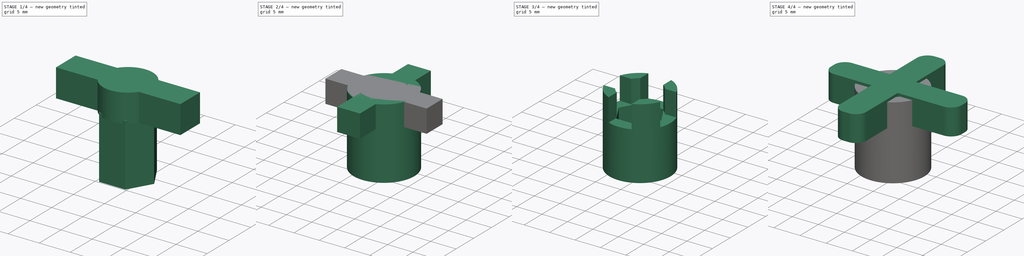
[diagram: build sequence overview — one tinted view per stage of 4, left to right]
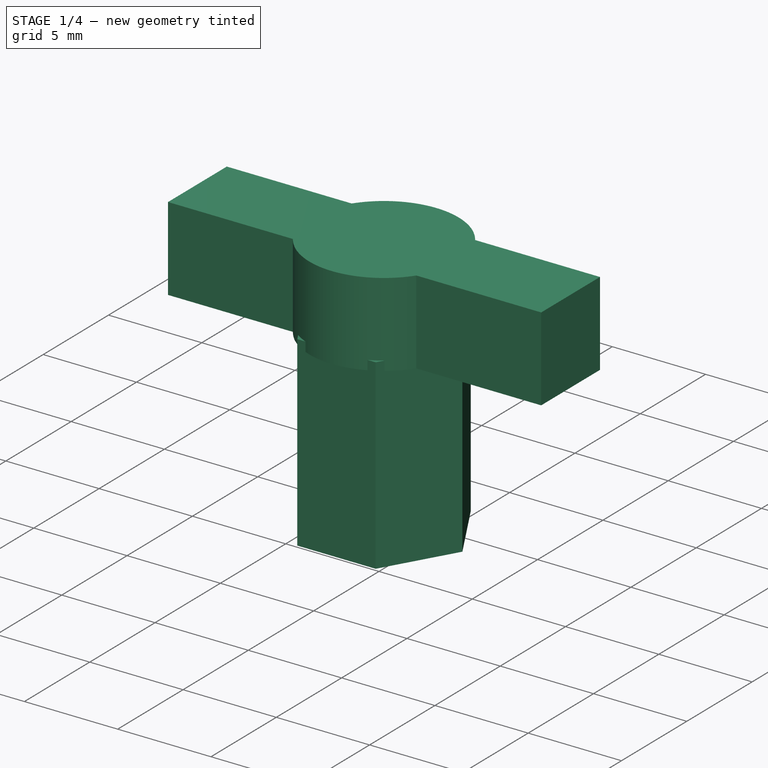
[diagram: stage 1 of 4 — iso view after this stage's code; geometry added in this stage tinted green]
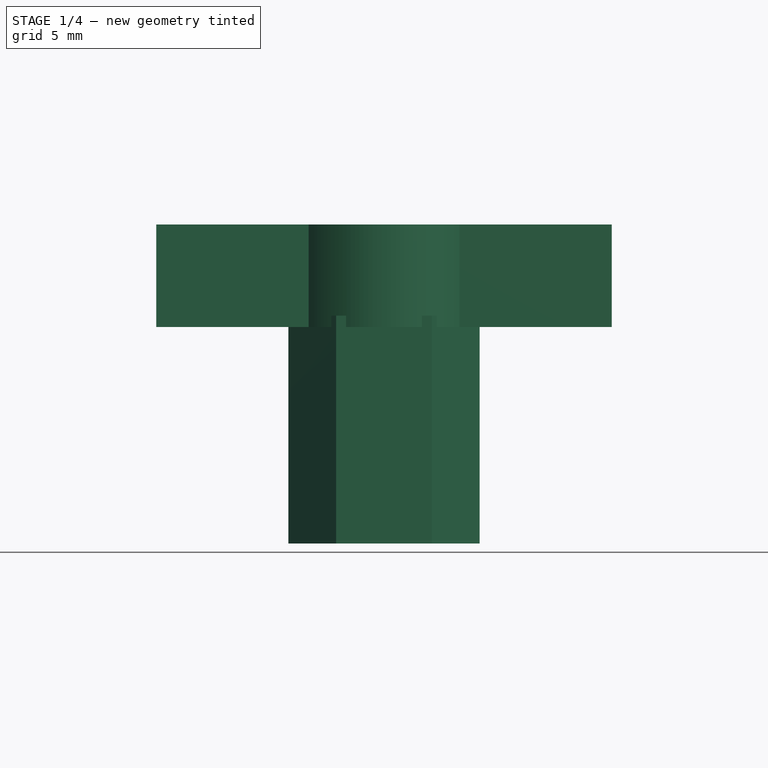
[diagram: stage 1 of 4 — front view after this stage's code; geometry added in this stage tinted green]
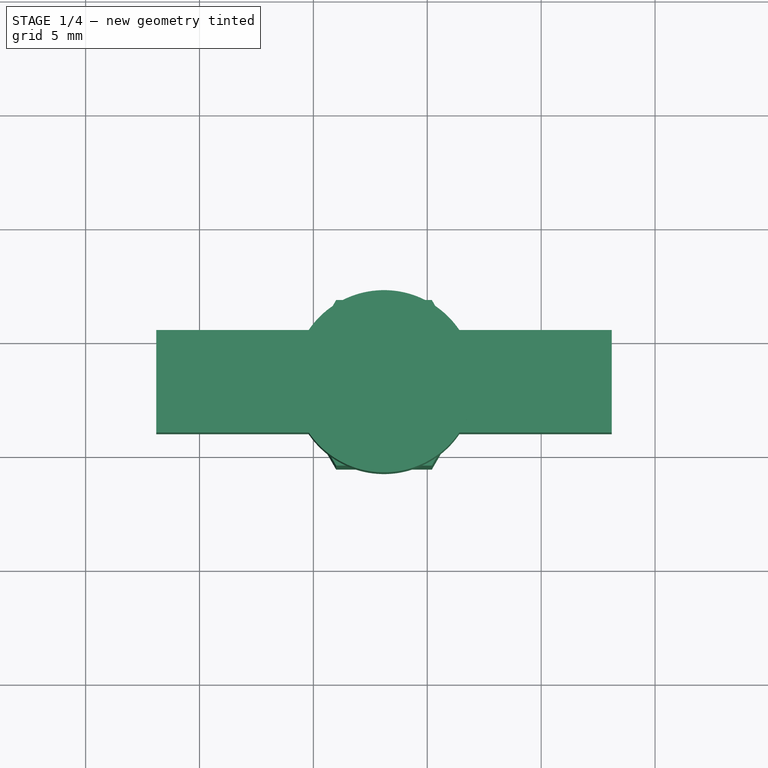
[diagram: stage 1 of 4 — top view after this stage's code; geometry added in this stage tinted green]
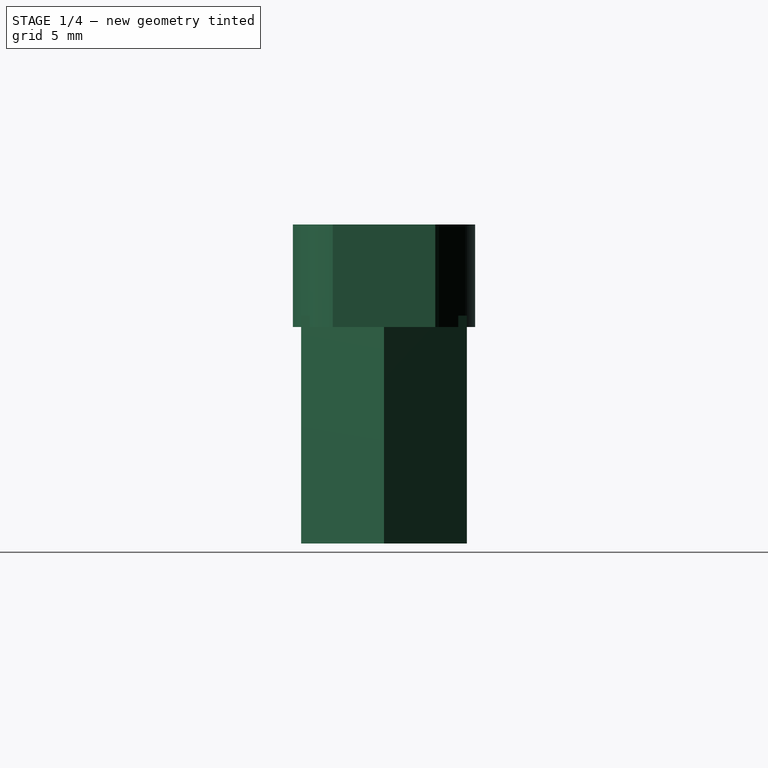
[diagram: stage 1 of 4 — right view after this stage's code; geometry added in this stage tinted green]
FCSTD DOCUMENT  (FreeCAD 0.19R23634 (Git))
Label: Stage-Nut_Cross
License: All rights reserved
LicenseURL: http://en.wikipedia.org/wiki/All_rights_reserved
objects: Part::Box×2, Part::Cylinder×2, PartDesign::Fillet×2, Part::Prism×1, Part::MultiFuse×1, Part::Cut×1, PartDesign::FeatureBase×1, PartDesign::CoordinateSystem×1, Sketcher::SketchObject×1, PartDesign::Pad×1, PartDesign::Body×1, App::Part×1
note: 17 computed .brp shape members not serialized (recipe doc carries the construction recipe); baked Part::Feature solids carry a one-line shape summary decoded from their .brp

FEATURE [Part::Cylinder] cylinder019
  Angle = 360
  AttacherType = Attacher::AttachEngine3D
  Height = 4.5
  Placement = pos=(-66.9,-66.9,-7) rot=(0,0,1;0rad)
  Radius = 4
FEATURE [Part::Prism] prism022
  AttacherType = Attacher::AttachEngine3D
  Circumradius = 4.2
  FirstAngle = 0
  Height = 10
  Placement = pos=(-66.9,-66.9,-16.5) rot=(0,0,1;0rad)
  Polygon = 6
  SecondAngle = 0
FEATURE [Part::Box] cube028
  AttacherType = Attacher::AttachEngine3D
  Height = 4.5
  Length = 20
  Placement = pos=(-76.9,-69.15,-7) rot=(0,0,1;0rad)
  Width = 4.5
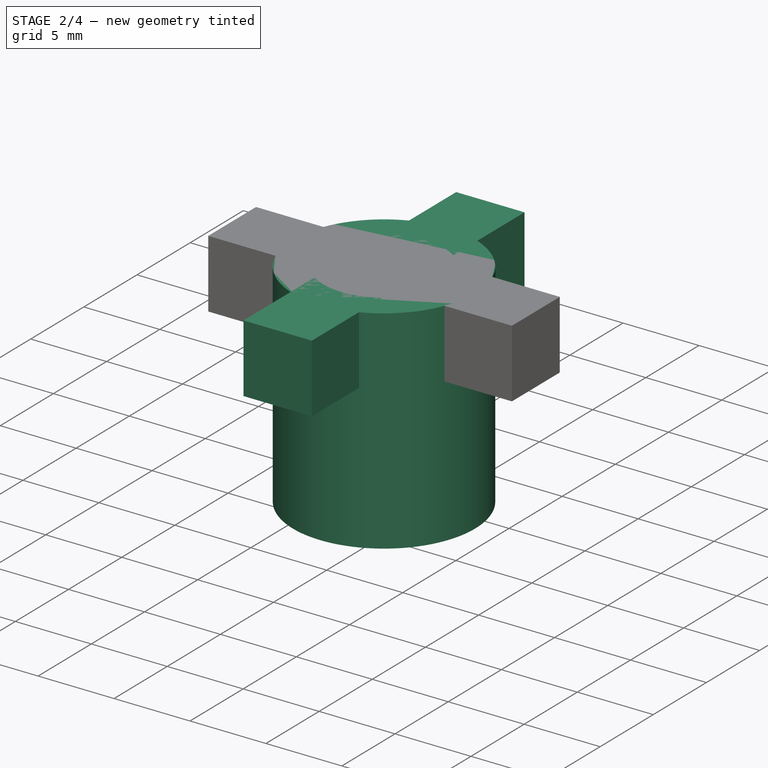
[diagram: stage 2 of 4 — iso view after this stage's code; geometry added in this stage tinted green]
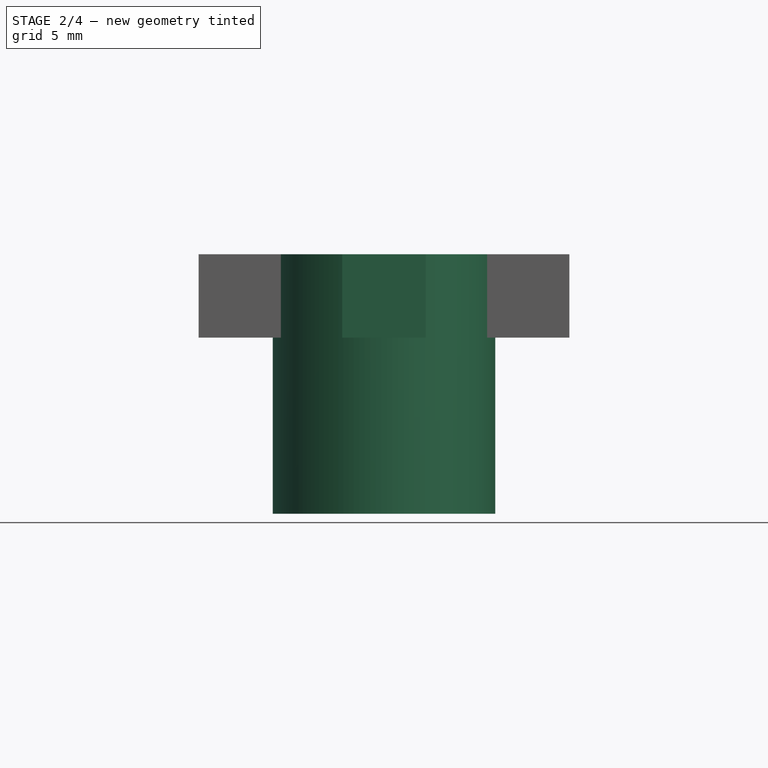
[diagram: stage 2 of 4 — front view after this stage's code; geometry added in this stage tinted green]
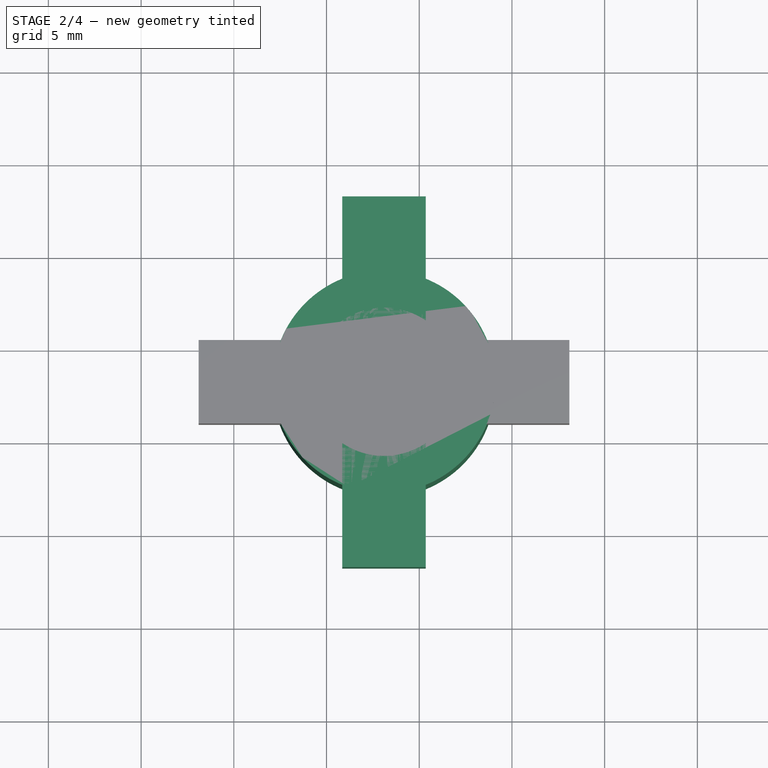
[diagram: stage 2 of 4 — top view after this stage's code; geometry added in this stage tinted green]
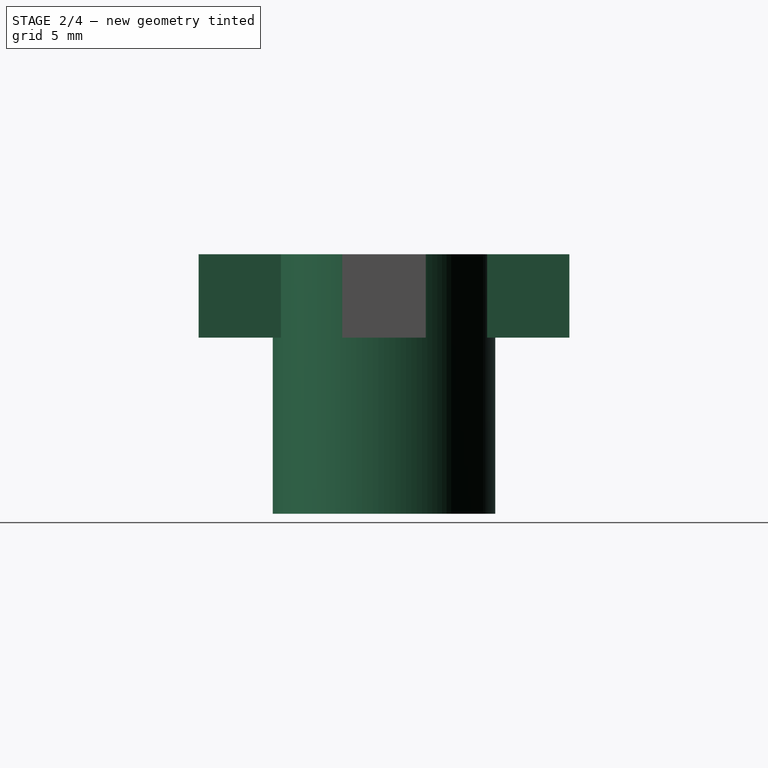
[diagram: stage 2 of 4 — right view after this stage's code; geometry added in this stage tinted green]
FEATURE [Part::Box] cube029
  AttacherType = Attacher::AttachEngine3D
  Height = 4.5
  Length = 4.5
  Placement = pos=(-69.15,-76.9,-7) rot=(0,0,1;0rad)
  Width = 20
FEATURE [Part::Cylinder] cylinder018
  Angle = 360
  AttacherType = Attacher::AttachEngine3D
  Height = 14
  Placement = pos=(-66.9,-66.9,-16.5) rot=(0,0,1;0rad)
  Radius = 6
FEATURE [Part::MultiFuse] Group012
  Shapes = -> [prism022,cylinder019,cube028,cube029]
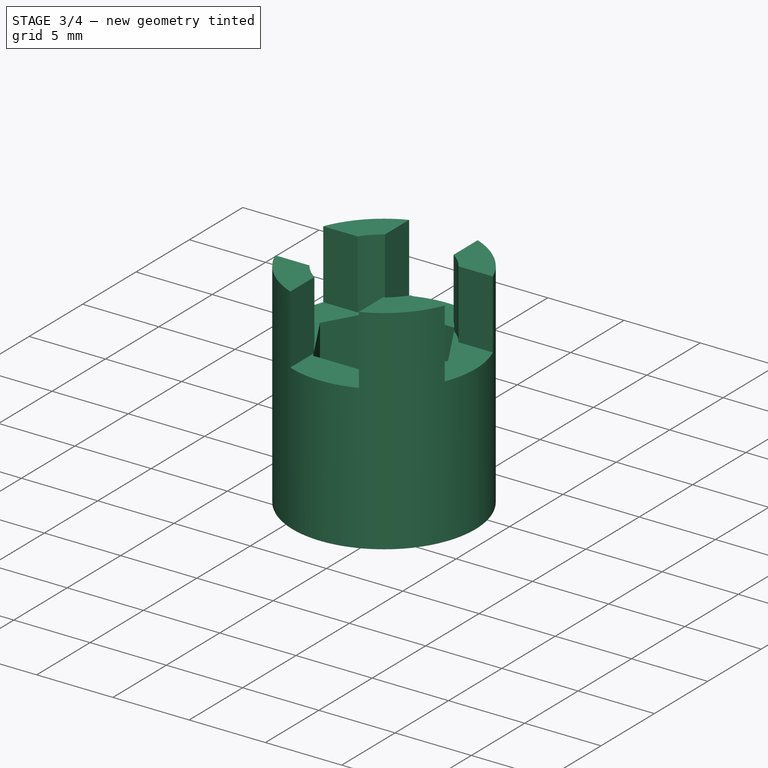
[diagram: stage 3 of 4 — iso view after this stage's code; geometry added in this stage tinted green]
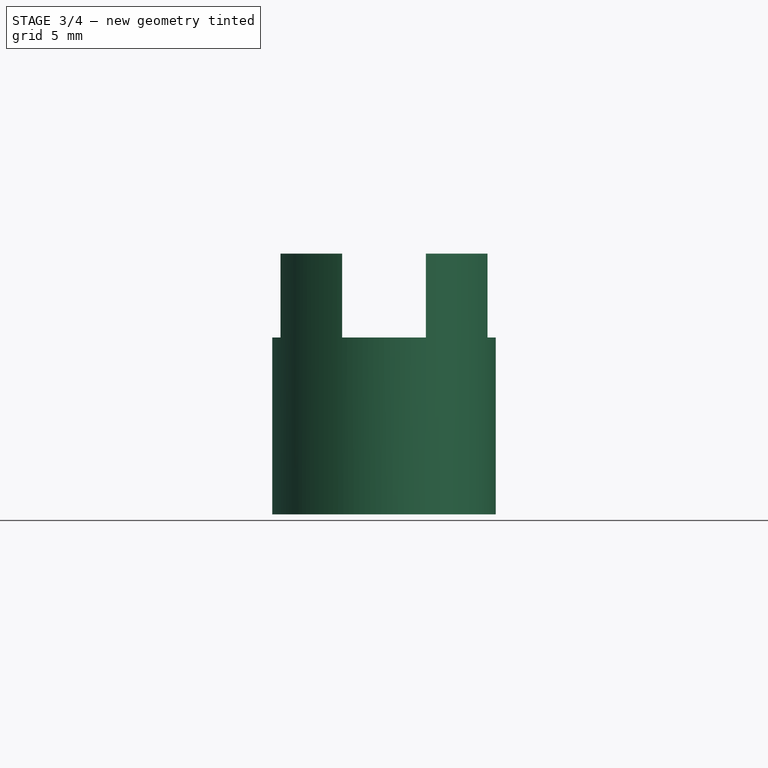
[diagram: stage 3 of 4 — front view after this stage's code; geometry added in this stage tinted green]
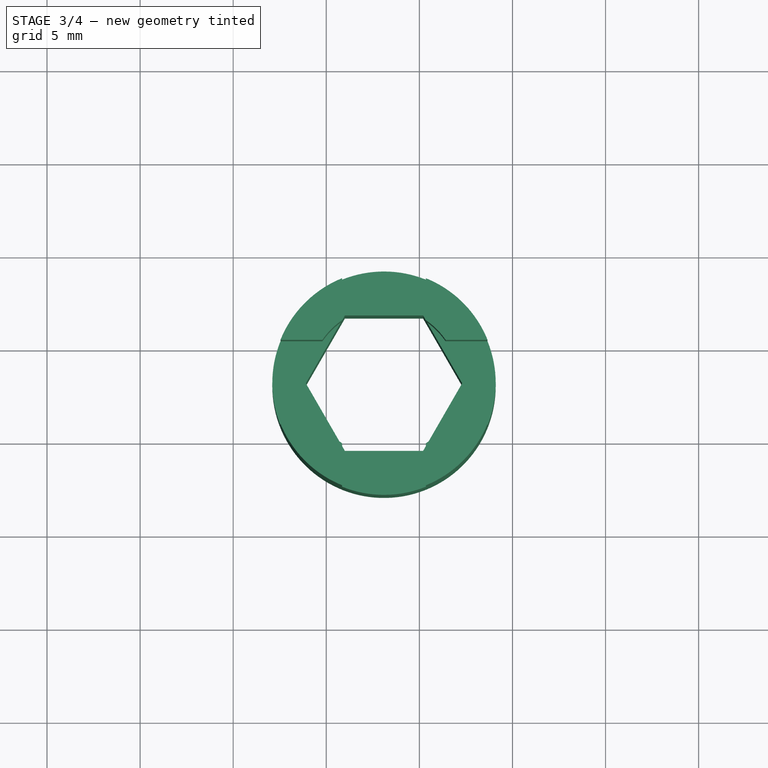
[diagram: stage 3 of 4 — top view after this stage's code; geometry added in this stage tinted green]
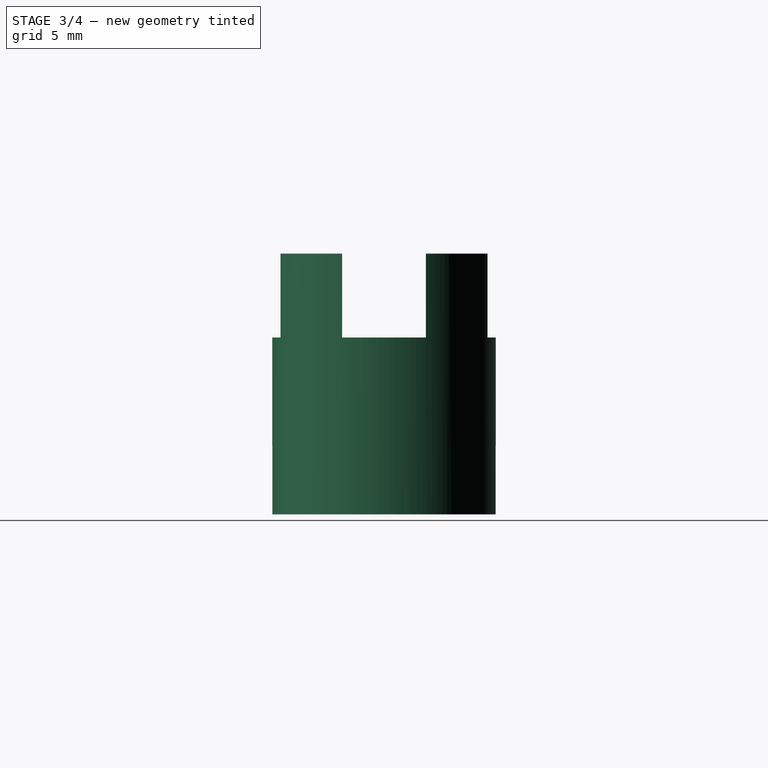
[diagram: stage 3 of 4 — right view after this stage's code; geometry added in this stage tinted green]
FEATURE [Part::Cut] difference007
  Base = -> cylinder018
  Tool = -> Group012
FEATURE [PartDesign::FeatureBase] BaseFeature007
  BaseFeature = -> difference007
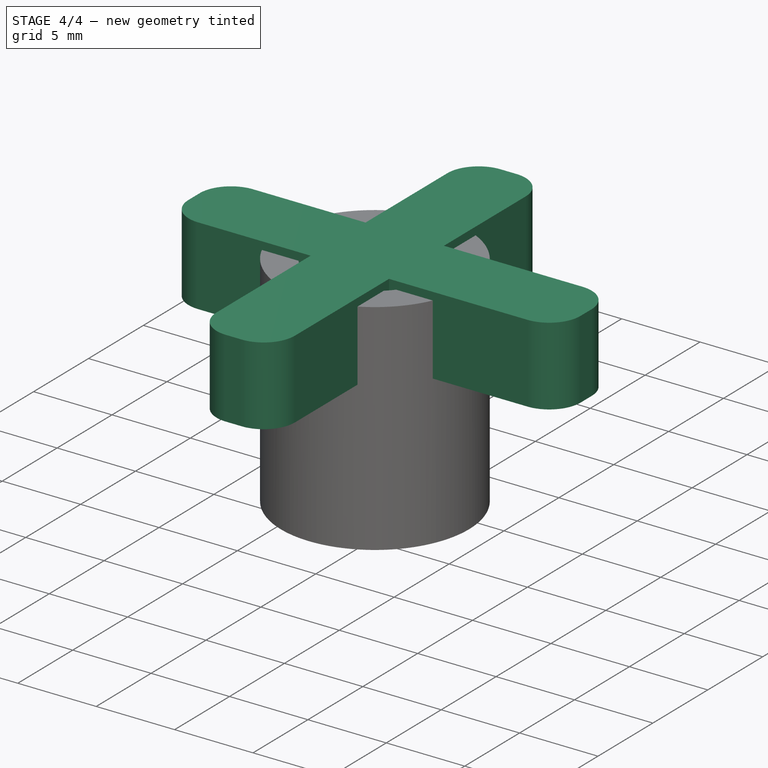
[diagram: stage 4 of 4 — iso view after this stage's code; geometry added in this stage tinted green]
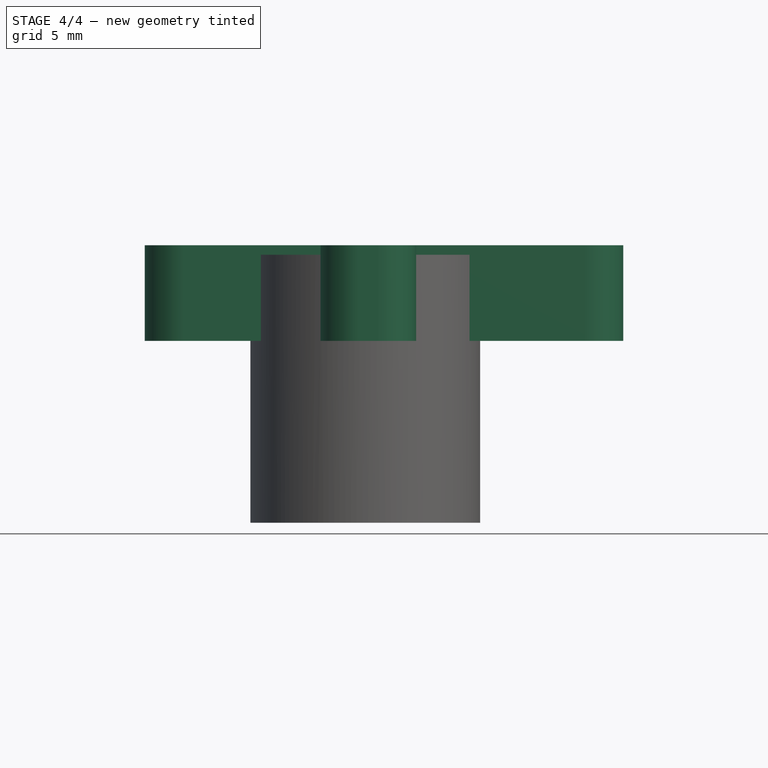
[diagram: stage 4 of 4 — front view after this stage's code; geometry added in this stage tinted green]
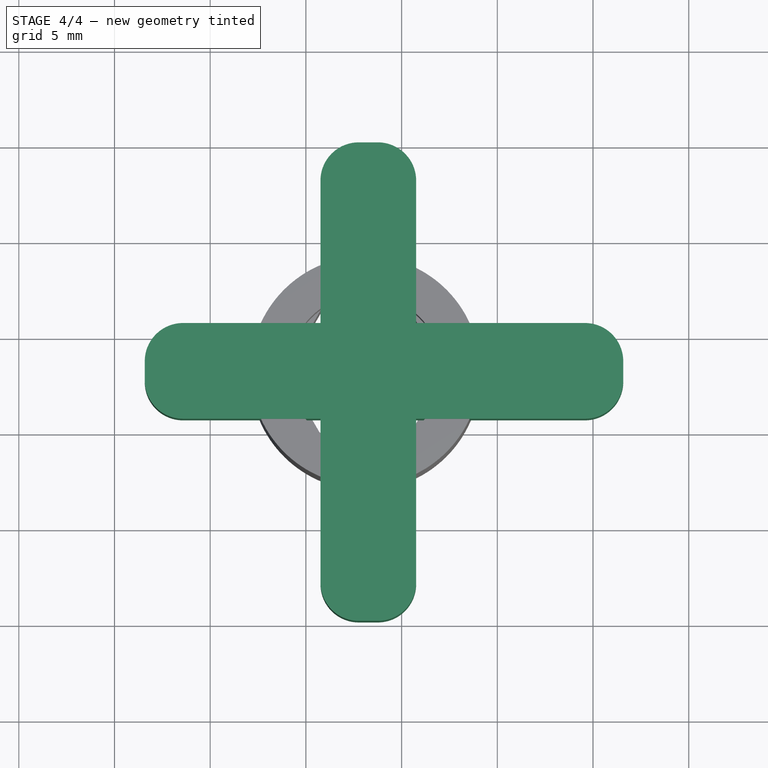
[diagram: stage 4 of 4 — top view after this stage's code; geometry added in this stage tinted green]
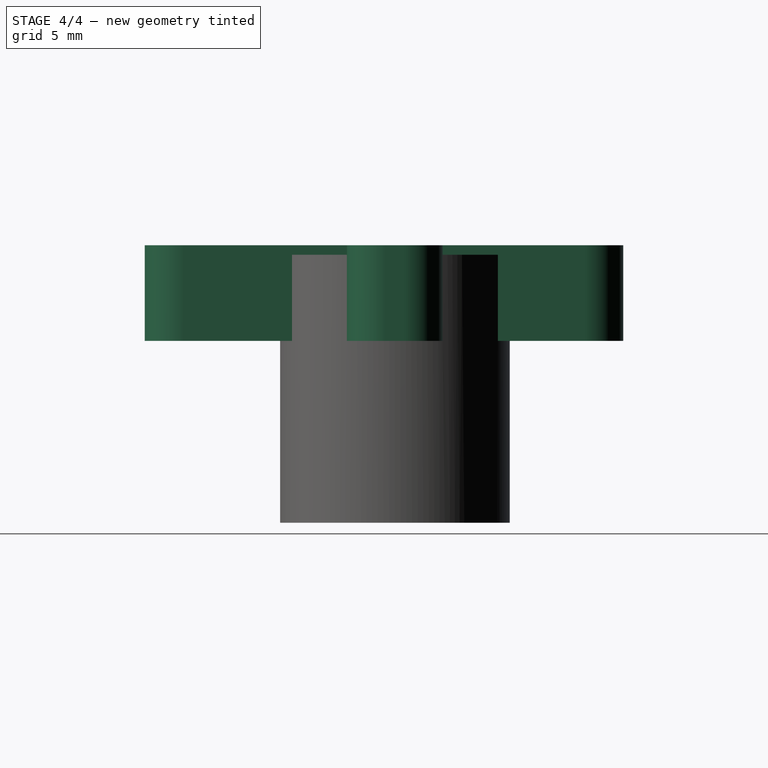
[diagram: stage 4 of 4 — right view after this stage's code; geometry added in this stage tinted green]
FEATURE [PartDesign::CoordinateSystem] LCS_0
  AttacherType = Attacher::AttachEngine3D
  MapMode = 45
  Placement = pos=(-66.9,-66.9,-16.5) rot=(0,0,1;0rad)
  Support = -> [BaseFeature007]
FEATURE [Sketcher::SketchObject] Sketch
  FullyConstrained = true
  MapMode = 5
  Placement = pos=(0,0,-7) rot=(0,0,1;0rad)
  Support = -> [BaseFeature007]
  sketch-geometry (8):
    g0: LineSegment StartX=-78.42 StartY=-64.41 StartZ=0 EndX=-53.42 EndY=-64.41 EndZ=0
    g1: LineSegment StartX=-53.42 StartY=-64.41 StartZ=0 EndX=-53.42 EndY=-69.41 EndZ=0
    g2: LineSegment StartX=-53.42 StartY=-69.41 StartZ=0 EndX=-78.42 EndY=-69.41 EndZ=0
    g3: LineSegment StartX=-78.42 StartY=-69.41 StartZ=0 EndX=-78.42 EndY=-64.41 EndZ=0
    g4: LineSegment StartX=-69.24 StartY=-54.97 StartZ=0 EndX=-64.24 EndY=-54.97 EndZ=0
    g5: LineSegment StartX=-64.24 StartY=-54.97 StartZ=0 EndX=-64.24 EndY=-79.97 EndZ=0
    g6: LineSegment StartX=-64.24 StartY=-79.97 StartZ=0 EndX=-69.24 EndY=-79.97 EndZ=0
    g7: LineSegment StartX=-69.24 StartY=-79.97 StartZ=0 EndX=-69.24 EndY=-54.97 EndZ=0
  constraints (24):
    c: Coincident(g0,g1)
    c: Coincident(g1,g2)
    c: Coincident(g2,g3)
    c: Coincident(g3,g0)
    c: Horizontal(g0)
    c: Horizontal(g2)
    c: Vertical(g1)
    c: Vertical(g3)
    c: Distance(g0) = 25
    c: Distance(g3) = 5
    c: Coincident(g4,g5)
    c: Coincident(g5,g6)
    c: Coincident(g6,g7)
    c: Coincident(g7,g4)
    c: Horizontal(g4)
    c: Horizontal(g6)
    c: Vertical(g5)
    c: Vertical(g7)
    c: Distance(g4) = 5
    c: Distance(g7) = 25
    c: DistanceX(g1,g-1) = 53.42
    c: DistanceX(g4,g-1) = 64.24
    c: DistanceY(g4,g-1) = 54.97
    c: DistanceY(g0,g-1) = 64.41
FEATURE [PartDesign::Pad] Pad
  BaseFeature = -> BaseFeature007
  Direction = (1,1,1)
  Length = 5
  Length2 = 100
  Profile = -> Sketch
  Type = 0
FEATURE [PartDesign::Fillet] Fillet
  Base = -> Pad [Edge39,Edge54]
  BaseFeature = -> Pad
  Radius = 2
  SupportTransform = false
FEATURE [PartDesign::Fillet] Fillet001
  Base = -> Fillet [Edge109,Edge101,Edge52,Edge111,Edge6,Edge99]
  BaseFeature = -> Fillet
  Radius = 2
  SupportTransform = false
FEATURE [PartDesign::Body] Body007  label="Nut001"
  BaseFeature = -> difference007
  Group = -> [BaseFeature007,Sketch,Pad,Fillet,Fillet001]
  Origin = -> Origin007
  Tip = -> Fillet001
FEATURE [App::Part] Nut
  Group = -> [LCS_0,cube028,cube029,Group012,cylinder019,cylinder018,difference007,prism022,Body007]
  Origin = -> Origin
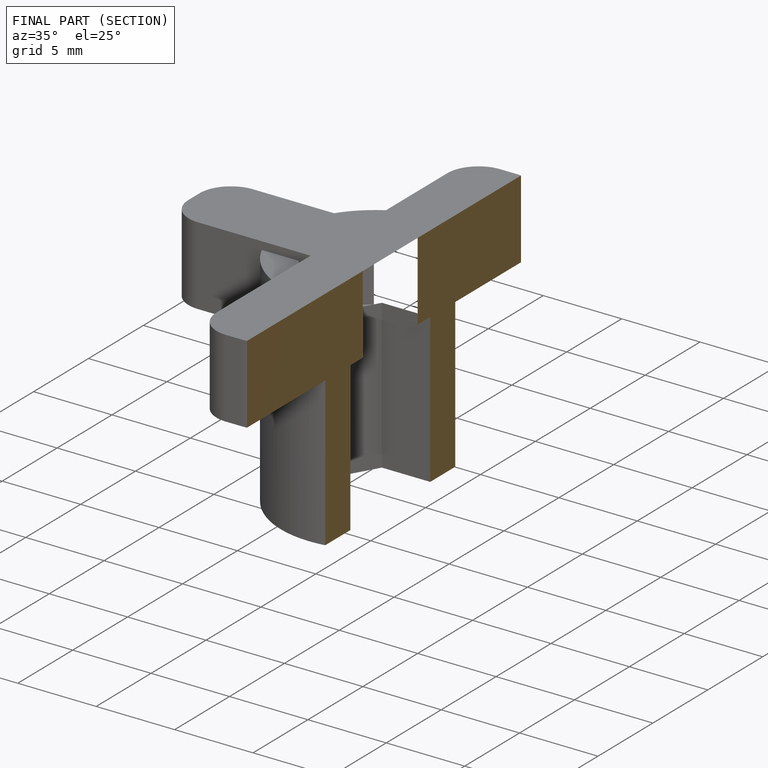
[diagram: finished part — half-section view (interior)]
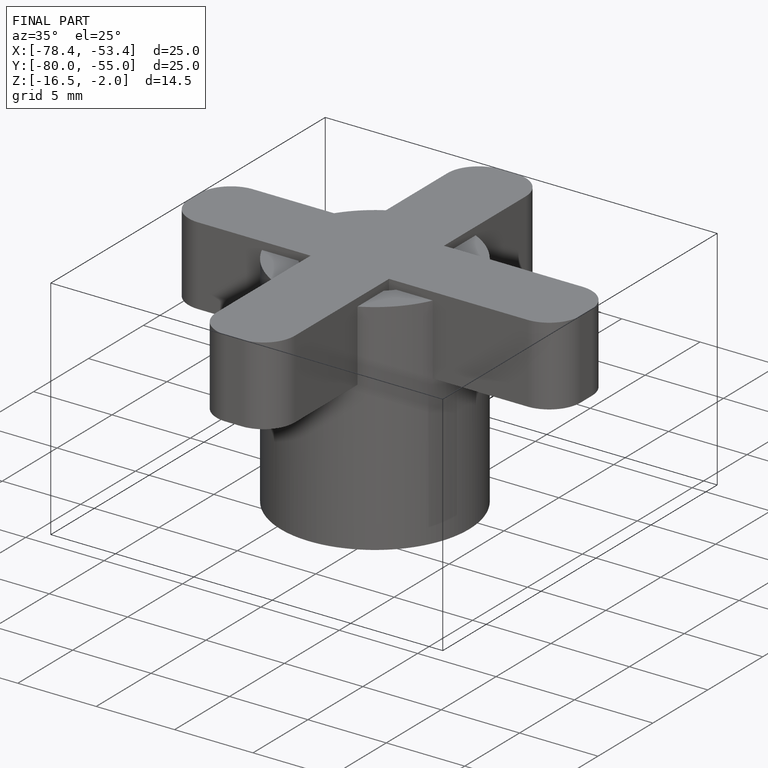
[diagram: finished part — iso view with bounding-box wireframe]
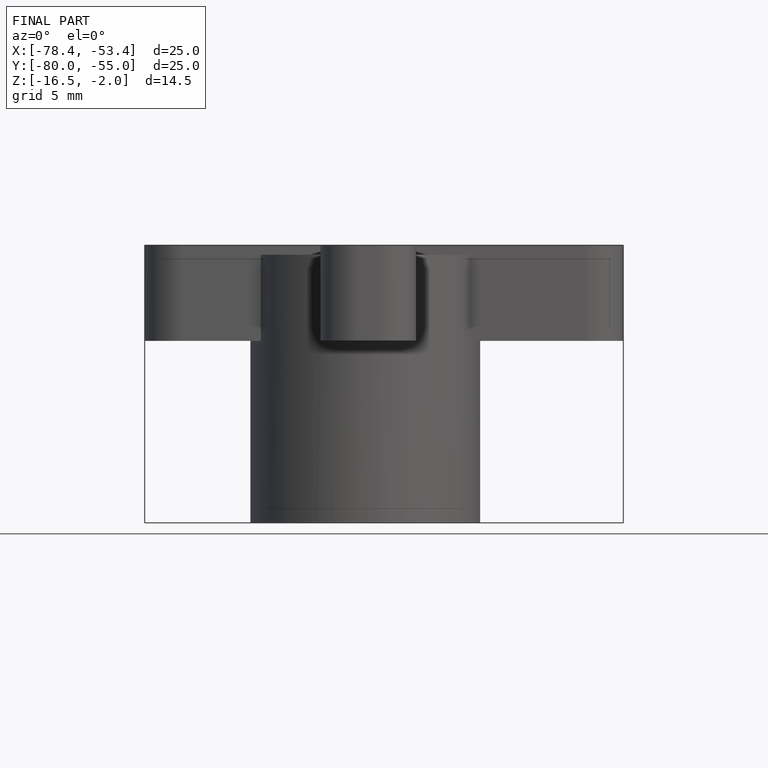
[diagram: finished part — front view with bounding-box wireframe]
